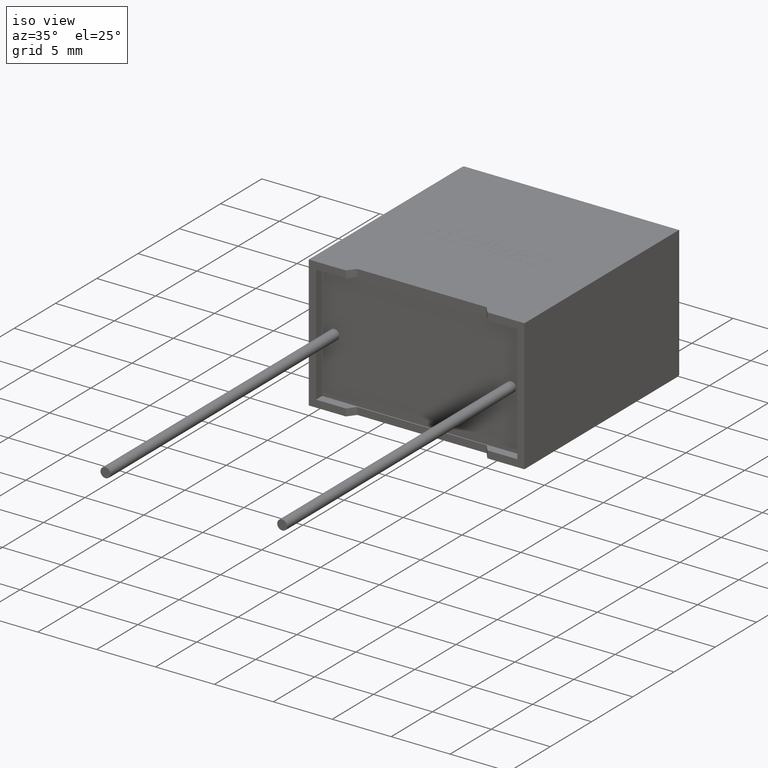
[diagram: clean part render]
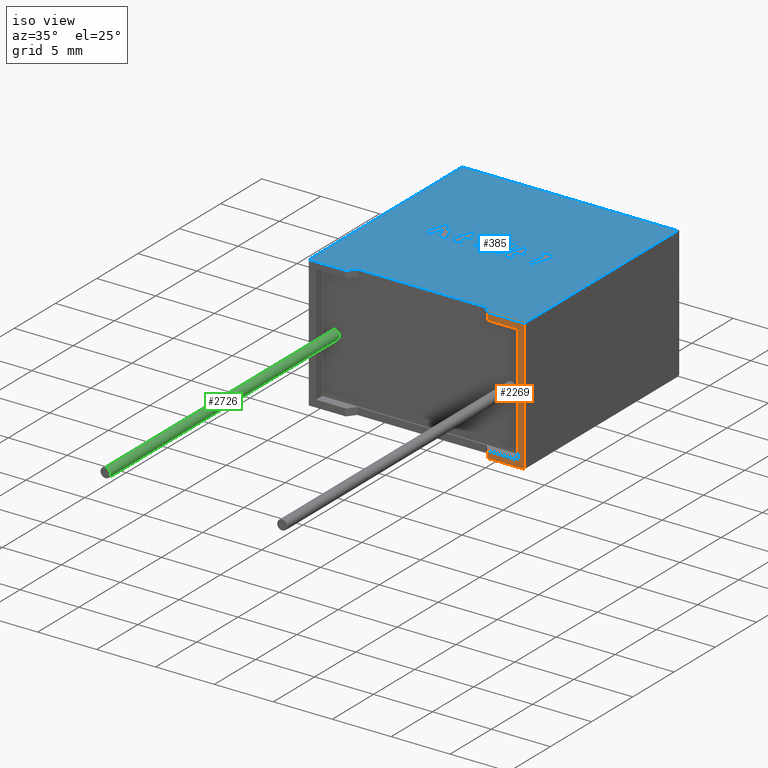
[diagram: same view with three faces highlighted in distinct colors, each labeled with its STEP entity id]
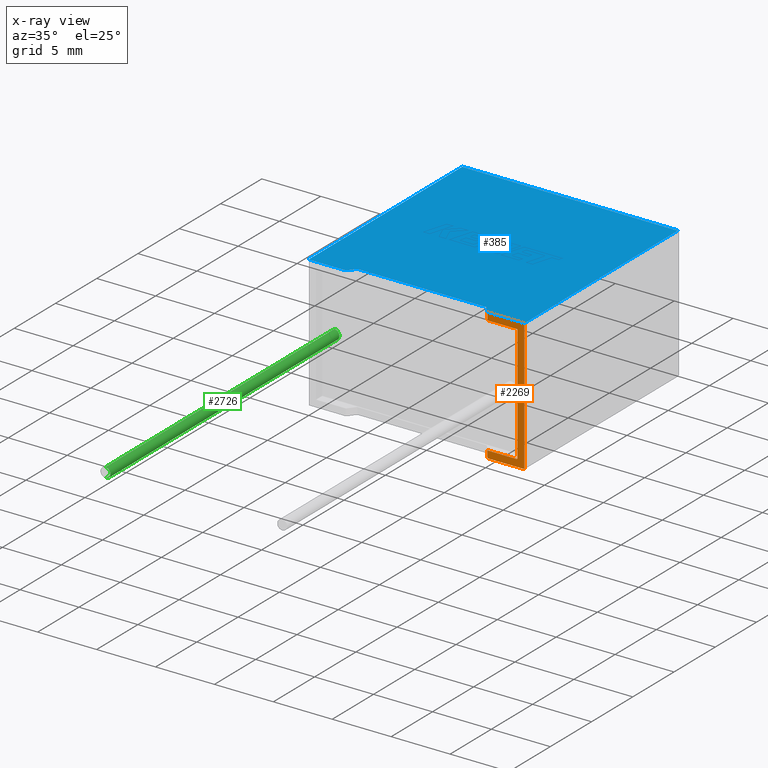
[diagram: x-ray of the same camera — body ghosted, the three highlighted faces saturated]
A machine part, iso view with three faces highlighted in distinct colors.
The next image is the same camera in x-ray (body ghosted, the three faces saturated) — at least one of them is partly hidden behind the body in this view.
Their STEP definitions:

[orange] entity #2269 — the highlighted planar face has unit normal (0, 1, 0).
#69 = VERTEX_POINT ( 'NONE', #1636 ) ;
#179 = CARTESIAN_POINT ( 'NONE',  ( 15.15000000000000036, 1.928818708657081098E-16, 11.19999999999999929 ) ) ;
#206 = VERTEX_POINT ( 'NONE', #1795 ) ;
#218 = DIRECTION ( 'NONE',  ( 0.000000000000000000, 1.000000000000000000, 0.000000000000000000 ) ) ;
#296 = ORIENTED_EDGE ( 'NONE', *, *, #2947, .T. ) ;
#306 = VECTOR ( 'NONE', #2490, 1000.000000000000000 ) ;
#368 = CARTESIAN_POINT ( 'NONE',  ( 18.30000000000000071, 0.000000000000000000, 0.000000000000000000 ) ) ;
#376 = DIRECTION ( 'NONE',  ( 1.000000000000000000, 0.000000000000000000, 0.000000000000000000 ) ) ;
#394 = LINE ( 'NONE', #838, #2589 ) ;
#416 = DIRECTION ( 'NONE',  ( -0.000000000000000000, -0.000000000000000000, 1.000000000000000000 ) ) ;
#429 = CARTESIAN_POINT ( 'NONE',  ( 15.15000000000000036, 1.928818708657081098E-16, 0.000000000000000000 ) ) ;
#488 = FACE_OUTER_BOUND ( 'NONE', #490, .T. ) ;
#490 = EDGE_LOOP ( 'NONE', ( #748, #296, #1065, #884, #2707, #1998, #2658, #696 ) ) ;
#517 = DIRECTION ( 'NONE',  ( 0.000000000000000000, -0.000000000000000000, 1.000000000000000000 ) ) ;
#542 = EDGE_CURVE ( 'NONE', #206, #1437, #2708, .T. ) ;
#555 = EDGE_CURVE ( 'NONE', #1846, #206, #836, .T. ) ;
#619 = VERTEX_POINT ( 'NONE', #1268 ) ;
#667 = VERTEX_POINT ( 'NONE', #1806 ) ;
#696 = ORIENTED_EDGE ( 'NONE', *, *, #2684, .F. ) ;
#698 = CARTESIAN_POINT ( 'NONE',  ( 15.15000000000000036, 1.928818708657081098E-16, 0.000000000000000000 ) ) ;
#718 = VECTOR ( 'NONE', #2924, 1000.000000000000000 ) ;
#748 = ORIENTED_EDGE ( 'NONE', *, *, #1490, .F. ) ;
#835 = CARTESIAN_POINT ( 'NONE',  ( 17.69000006100000277, 0.000000000000000000, 0.6099999390000000465 ) ) ;
#836 = LINE ( 'NONE', #1522, #2557 ) ;
#838 = CARTESIAN_POINT ( 'NONE',  ( 0.6099999390000000465, 0.000000000000000000, 0.6099999390000000465 ) ) ;
#842 = CARTESIAN_POINT ( 'NONE',  ( 17.69000006100000277, 0.000000000000000000, 10.59000006100000135 ) ) ;
#884 = ORIENTED_EDGE ( 'NONE', *, *, #555, .F. ) ;
#888 = VECTOR ( 'NONE', #1185, 1000.000000000000000 ) ;
#1057 = LINE ( 'NONE', #842, #306 ) ;
#1065 = ORIENTED_EDGE ( 'NONE', *, *, #542, .F. ) ;
#1091 = EDGE_CURVE ( 'NONE', #1476, #69, #1970, .T. ) ;
#1185 = DIRECTION ( 'NONE',  ( -0.000000000000000000, -0.000000000000000000, 1.000000000000000000 ) ) ;
#1268 = CARTESIAN_POINT ( 'NONE',  ( 15.15000000000000036, 1.928818708657081098E-16, 10.59000006100000135 ) ) ;
#1343 = DIRECTION ( 'NONE',  ( 1.000000000000000000, 0.000000000000000000, 0.000000000000000000 ) ) ;
#1366 = CARTESIAN_POINT ( 'NONE',  ( 17.69000006100000277, 0.000000000000000000, 0.6099999390000000465 ) ) ;
#1394 = LINE ( 'NONE', #698, #1453 ) ;
#1437 = VERTEX_POINT ( 'NONE', #368 ) ;
#1453 = VECTOR ( 'NONE', #416, 1000.000000000000000 ) ;
#1476 = VERTEX_POINT ( 'NONE', #1366 ) ;
#1490 = EDGE_CURVE ( 'NONE', #1919, #667, #2995, .T. ) ;
#1522 = CARTESIAN_POINT ( 'NONE',  ( 0.000000000000000000, 0.000000000000000000, 11.19999999999999929 ) ) ;
#1636 = CARTESIAN_POINT ( 'NONE',  ( 17.69000006100000277, 0.000000000000000000, 10.59000006100000135 ) ) ;
#1773 = DIRECTION ( 'NONE',  ( 0.000000000000000000, 0.000000000000000000, 1.000000000000000000 ) ) ;
#1782 = EDGE_CURVE ( 'NONE', #69, #619, #1057, .T. ) ;
#1795 = CARTESIAN_POINT ( 'NONE',  ( 18.30000000000000071, 0.000000000000000000, 11.19999999999999929 ) ) ;
#1806 = CARTESIAN_POINT ( 'NONE',  ( 15.15000000000000036, 1.928818708657081098E-16, 0.6099999390000000465 ) ) ;
#1820 = EDGE_CURVE ( 'NONE', #619, #1846, #1394, .T. ) ;
#1844 = AXIS2_PLACEMENT_3D ( 'NONE', #2109, #218, #517 ) ;
#1846 = VERTEX_POINT ( 'NONE', #179 ) ;
#1919 = VERTEX_POINT ( 'NONE', #2583 ) ;
#1970 = LINE ( 'NONE', #835, #2709 ) ;
#1982 = LINE ( 'NONE', #2954, #718 ) ;
#1998 = ORIENTED_EDGE ( 'NONE', *, *, #1782, .F. ) ;
#2109 = CARTESIAN_POINT ( 'NONE',  ( 0.000000000000000000, 0.000000000000000000, 11.19999999999999929 ) ) ;
#2269 = ADVANCED_FACE ( 'NONE', ( #488 ), #2344, .F. ) ;
#2344 = PLANE ( 'NONE',  #1844 ) ;
#2483 = CARTESIAN_POINT ( 'NONE',  ( 18.30000000000000071, 0.000000000000000000, 11.19999999999999929 ) ) ;
#2490 = DIRECTION ( 'NONE',  ( -1.000000000000000000, 0.000000000000000000, -1.015646055963656327E-16 ) ) ;
#2557 = VECTOR ( 'NONE', #376, 1000.000000000000000 ) ;
#2583 = CARTESIAN_POINT ( 'NONE',  ( 15.15000000000000036, 1.928818708657081098E-16, 0.000000000000000000 ) ) ;
#2589 = VECTOR ( 'NONE', #1343, 1000.000000000000000 ) ;
#2658 = ORIENTED_EDGE ( 'NONE', *, *, #1091, .F. ) ;
#2684 = EDGE_CURVE ( 'NONE', #667, #1476, #394, .T. ) ;
#2694 = DIRECTION ( 'NONE',  ( -0.000000000000000000, -0.000000000000000000, -1.000000000000000000 ) ) ;
#2707 = ORIENTED_EDGE ( 'NONE', *, *, #1820, .F. ) ;
#2708 = LINE ( 'NONE', #2483, #2799 ) ;
#2709 = VECTOR ( 'NONE', #1773, 1000.000000000000000 ) ;
#2799 = VECTOR ( 'NONE', #2694, 1000.000000000000000 ) ;
#2924 = DIRECTION ( 'NONE',  ( 1.000000000000000000, 0.000000000000000000, 0.000000000000000000 ) ) ;
#2947 = EDGE_CURVE ( 'NONE', #1919, #1437, #1982, .T. ) ;
#2954 = CARTESIAN_POINT ( 'NONE',  ( 0.000000000000000000, 0.000000000000000000, 0.000000000000000000 ) ) ;
#2995 = LINE ( 'NONE', #429, #888 ) ;

[blue] entity #385 — the highlighted planar face has unit normal (0, 0, -1).
#10 = CARTESIAN_POINT ( 'NONE',  ( 0.000000000000000000, 0.000000000000000000, 11.19999999999999929 ) ) ;
#16 = ORIENTED_EDGE ( 'NONE', *, *, #555, .T. ) ;
#43 = DIRECTION ( 'NONE',  ( 1.000000000000000000, 0.000000000000000000, 0.000000000000000000 ) ) ;
#65 = CARTESIAN_POINT ( 'NONE',  ( 14.64180899999999852, 0.6585679999999998202, 11.19999999999999929 ) ) ;
#179 = CARTESIAN_POINT ( 'NONE',  ( 15.15000000000000036, 1.928818708657081098E-16, 11.19999999999999929 ) ) ;
#206 = VERTEX_POINT ( 'NONE', #1795 ) ;
#253 = CARTESIAN_POINT ( 'NONE',  ( 3.658191000000000859, 0.6585679999999998202, 11.19999999999999929 ) ) ;
#266 = LINE ( 'NONE', #1222, #1902 ) ;
#331 = CARTESIAN_POINT ( 'NONE',  ( 18.30000000000000071, 18.60000000000000142, 11.19999999999999929 ) ) ;
#371 = VERTEX_POINT ( 'NONE', #2548 ) ;
#376 = DIRECTION ( 'NONE',  ( 1.000000000000000000, 0.000000000000000000, 0.000000000000000000 ) ) ;
#385 = ADVANCED_FACE ( 'NONE', ( #2516 ), #2793, .F. ) ;
#405 = VERTEX_POINT ( 'NONE', #65 ) ;
#450 = LINE ( 'NONE', #951, #1183 ) ;
#496 = DIRECTION ( 'NONE',  ( 0.000000000000000000, 0.000000000000000000, -1.000000000000000000 ) ) ;
#537 = DIRECTION ( 'NONE',  ( -1.000000000000000000, -1.381951777164597720E-16, 0.000000000000000000 ) ) ;
#546 = EDGE_CURVE ( 'NONE', #2101, #1293, #2018, .T. ) ;
#555 = EDGE_CURVE ( 'NONE', #1846, #206, #836, .T. ) ;
#751 = ORIENTED_EDGE ( 'NONE', *, *, #2354, .T. ) ;
#770 = LINE ( 'NONE', #2648, #2813 ) ;
#814 = LINE ( 'NONE', #2234, #2878 ) ;
#836 = LINE ( 'NONE', #1522, #2557 ) ;
#861 = VECTOR ( 'NONE', #2869, 1000.000000000000000 ) ;
#918 = EDGE_LOOP ( 'NONE', ( #2896, #1084, #1950, #3030, #2783, #1376, #751, #16 ) ) ;
#951 = CARTESIAN_POINT ( 'NONE',  ( 18.30000000000000071, 0.000000000000000000, 11.19999999999999929 ) ) ;
#961 = VECTOR ( 'NONE', #43, 1000.000000000000000 ) ;
#991 = VERTEX_POINT ( 'NONE', #253 ) ;
#1084 = ORIENTED_EDGE ( 'NONE', *, *, #546, .T. ) ;
#1119 = EDGE_CURVE ( 'NONE', #405, #991, #770, .T. ) ;
#1183 = VECTOR ( 'NONE', #2795, 1000.000000000000000 ) ;
#1222 = CARTESIAN_POINT ( 'NONE',  ( 3.150000000000000799, 1.928818708657081098E-16, 11.19999999999999929 ) ) ;
#1293 = VERTEX_POINT ( 'NONE', #2864 ) ;
#1330 = AXIS2_PLACEMENT_3D ( 'NONE', #2620, #496, #2183 ) ;
#1356 = EDGE_CURVE ( 'NONE', #991, #371, #266, .T. ) ;
#1376 = ORIENTED_EDGE ( 'NONE', *, *, #1119, .F. ) ;
#1474 = LINE ( 'NONE', #2166, #861 ) ;
#1515 = EDGE_CURVE ( 'NONE', #206, #2101, #450, .T. ) ;
#1522 = CARTESIAN_POINT ( 'NONE',  ( 0.000000000000000000, 0.000000000000000000, 11.19999999999999929 ) ) ;
#1635 = VERTEX_POINT ( 'NONE', #10 ) ;
#1665 = LINE ( 'NONE', #2614, #961 ) ;
#1795 = CARTESIAN_POINT ( 'NONE',  ( 18.30000000000000071, 0.000000000000000000, 11.19999999999999929 ) ) ;
#1846 = VERTEX_POINT ( 'NONE', #179 ) ;
#1902 = VECTOR ( 'NONE', #2159, 999.9999999999997726 ) ;
#1914 = VECTOR ( 'NONE', #2942, 1000.000000000000000 ) ;
#1950 = ORIENTED_EDGE ( 'NONE', *, *, #1985, .T. ) ;
#1985 = EDGE_CURVE ( 'NONE', #1293, #1635, #1474, .T. ) ;
#2018 = LINE ( 'NONE', #2497, #1914 ) ;
#2101 = VERTEX_POINT ( 'NONE', #331 ) ;
#2159 = DIRECTION ( 'NONE',  ( -0.6109186266108664887, -0.7916933949831164163, -0.000000000000000000 ) ) ;
#2166 = CARTESIAN_POINT ( 'NONE',  ( 0.000000000000000000, 0.000000000000000000, 11.19999999999999929 ) ) ;
#2183 = DIRECTION ( 'NONE',  ( -1.000000000000000000, 0.000000000000000000, -0.000000000000000000 ) ) ;
#2193 = DIRECTION ( 'NONE',  ( 0.6109186266108664887, -0.7916933949831164163, -0.000000000000000000 ) ) ;
#2197 = EDGE_CURVE ( 'NONE', #1635, #371, #1665, .T. ) ;
#2234 = CARTESIAN_POINT ( 'NONE',  ( 15.15000000000000036, 1.928818708657081098E-16, 11.19999999999999929 ) ) ;
#2354 = EDGE_CURVE ( 'NONE', #405, #1846, #814, .T. ) ;
#2497 = CARTESIAN_POINT ( 'NONE',  ( 0.000000000000000000, 18.60000000000000142, 11.19999999999999929 ) ) ;
#2516 = FACE_OUTER_BOUND ( 'NONE', #918, .T. ) ;
#2548 = CARTESIAN_POINT ( 'NONE',  ( 3.150000000000000799, 1.928818708657081098E-16, 11.19999999999999929 ) ) ;
#2557 = VECTOR ( 'NONE', #376, 1000.000000000000000 ) ;
#2614 = CARTESIAN_POINT ( 'NONE',  ( 0.000000000000000000, 0.000000000000000000, 11.19999999999999929 ) ) ;
#2620 = CARTESIAN_POINT ( 'NONE',  ( 0.000000000000000000, 0.000000000000000000, 11.19999999999999929 ) ) ;
#2648 = CARTESIAN_POINT ( 'NONE',  ( 9.150000000000000355, 0.6585680000000005974, 11.19999999999999929 ) ) ;
#2783 = ORIENTED_EDGE ( 'NONE', *, *, #1356, .F. ) ;
#2793 = PLANE ( 'NONE',  #1330 ) ;
#2795 = DIRECTION ( 'NONE',  ( 0.000000000000000000, 1.000000000000000000, 0.000000000000000000 ) ) ;
#2813 = VECTOR ( 'NONE', #537, 1000.000000000000000 ) ;
#2864 = CARTESIAN_POINT ( 'NONE',  ( 0.000000000000000000, 18.60000000000000142, 11.19999999999999929 ) ) ;
#2869 = DIRECTION ( 'NONE',  ( -0.000000000000000000, -1.000000000000000000, -0.000000000000000000 ) ) ;
#2878 = VECTOR ( 'NONE', #2193, 999.9999999999997726 ) ;
#2896 = ORIENTED_EDGE ( 'NONE', *, *, #1515, .T. ) ;
#2942 = DIRECTION ( 'NONE',  ( -1.000000000000000000, 0.000000000000000000, 0.000000000000000000 ) ) ;
#3030 = ORIENTED_EDGE ( 'NONE', *, *, #2197, .T. ) ;

[green] entity #2726 — the highlighted cylindrical surface (edge-blend (fillet) strip) has radius 0.425 mm, axis along (-0, 1, -0).
#77 = DIRECTION ( 'NONE',  ( -0.000000000000000000, 1.000000000000000000, -0.000000000000000000 ) ) ;
#124 = CIRCLE ( 'NONE', #2746, 0.4250000000000000444 ) ;
#194 = ORIENTED_EDGE ( 'NONE', *, *, #1450, .F. ) ;
#364 = VECTOR ( 'NONE', #77, 1000.000000000000000 ) ;
#384 = DIRECTION ( 'NONE',  ( 0.000000000000000000, 0.000000000000000000, -1.000000000000000000 ) ) ;
#412 = DIRECTION ( 'NONE',  ( 0.000000000000000000, 0.000000000000000000, 1.000000000000000000 ) ) ;
#428 = DIRECTION ( 'NONE',  ( 0.000000000000000000, -1.000000000000000000, 0.000000000000000000 ) ) ;
#459 = CYLINDRICAL_SURFACE ( 'NONE', #762, 0.4250000000000000444 ) ;
#547 = VECTOR ( 'NONE', #634, 1000.000000000000000 ) ;
#634 = DIRECTION ( 'NONE',  ( -0.000000000000000000, 1.000000000000000000, -0.000000000000000000 ) ) ;
#762 = AXIS2_PLACEMENT_3D ( 'NONE', #1835, #2821, #412 ) ;
#983 = CARTESIAN_POINT ( 'NONE',  ( 1.650000000000000355, -27.00000000000000000, 6.025000000000000355 ) ) ;
#1063 = VERTEX_POINT ( 'NONE', #1548 ) ;
#1069 = VERTEX_POINT ( 'NONE', #2693 ) ;
#1147 = EDGE_CURVE ( 'NONE', #1679, #1069, #2740, .T. ) ;
#1168 = CARTESIAN_POINT ( 'NONE',  ( 1.650000000000000355, -27.00000000000000000, 5.174999999999999822 ) ) ;
#1450 = EDGE_CURVE ( 'NONE', #1498, #1679, #124, .T. ) ;
#1498 = VERTEX_POINT ( 'NONE', #1168 ) ;
#1501 = CIRCLE ( 'NONE', #2627, 0.4250000000000000444 ) ;
#1519 = CARTESIAN_POINT ( 'NONE',  ( 1.650000000000000355, -27.00000000000000000, 5.174999999999999822 ) ) ;
#1548 = CARTESIAN_POINT ( 'NONE',  ( 1.650000000000000355, 0.7500000000000000000, 5.174999999999999822 ) ) ;
#1609 = CARTESIAN_POINT ( 'NONE',  ( 1.650000000000000355, -27.00000000000000000, 6.025000000000000355 ) ) ;
#1649 = ORIENTED_EDGE ( 'NONE', *, *, #2161, .T. ) ;
#1679 = VERTEX_POINT ( 'NONE', #983 ) ;
#1752 = ORIENTED_EDGE ( 'NONE', *, *, #2965, .T. ) ;
#1835 = CARTESIAN_POINT ( 'NONE',  ( 1.650000000000000355, -27.00000000000000000, 5.599999999999999645 ) ) ;
#1995 = DIRECTION ( 'NONE',  ( 0.000000000000000000, -1.000000000000000000, 0.000000000000000000 ) ) ;
#1999 = LINE ( 'NONE', #1519, #364 ) ;
#2005 = EDGE_LOOP ( 'NONE', ( #194, #1752, #1649, #2623 ) ) ;
#2043 = CARTESIAN_POINT ( 'NONE',  ( 1.650000000000000355, 0.7500000000000000000, 5.599999999999999645 ) ) ;
#2099 = FACE_OUTER_BOUND ( 'NONE', #2005, .T. ) ;
#2161 = EDGE_CURVE ( 'NONE', #1063, #1069, #1501, .T. ) ;
#2322 = DIRECTION ( 'NONE',  ( 0.000000000000000000, 0.000000000000000000, -1.000000000000000000 ) ) ;
#2504 = CARTESIAN_POINT ( 'NONE',  ( 1.650000000000000355, -27.00000000000000000, 5.599999999999999645 ) ) ;
#2623 = ORIENTED_EDGE ( 'NONE', *, *, #1147, .F. ) ;
#2627 = AXIS2_PLACEMENT_3D ( 'NONE', #2043, #428, #2322 ) ;
#2693 = CARTESIAN_POINT ( 'NONE',  ( 1.650000000000000355, 0.7500000000000000000, 6.025000000000000355 ) ) ;
#2726 = ADVANCED_FACE ( 'NONE', ( #2099 ), #459, .T. ) ;
#2740 = LINE ( 'NONE', #1609, #547 ) ;
#2746 = AXIS2_PLACEMENT_3D ( 'NONE', #2504, #1995, #384 ) ;
#2821 = DIRECTION ( 'NONE',  ( -0.000000000000000000, 1.000000000000000000, -0.000000000000000000 ) ) ;
#2965 = EDGE_CURVE ( 'NONE', #1498, #1063, #1999, .T. ) ;